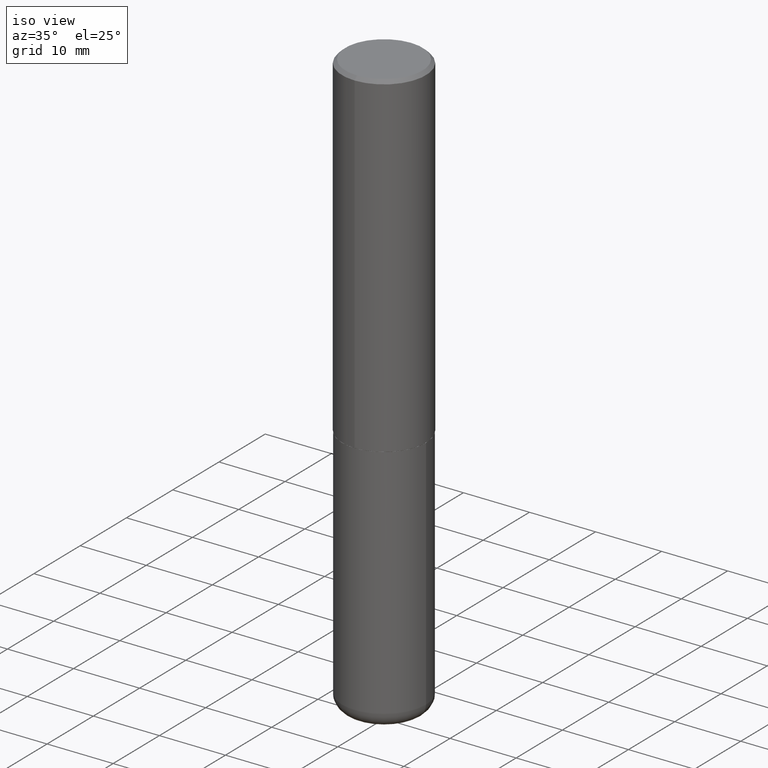
[diagram: clean part render]
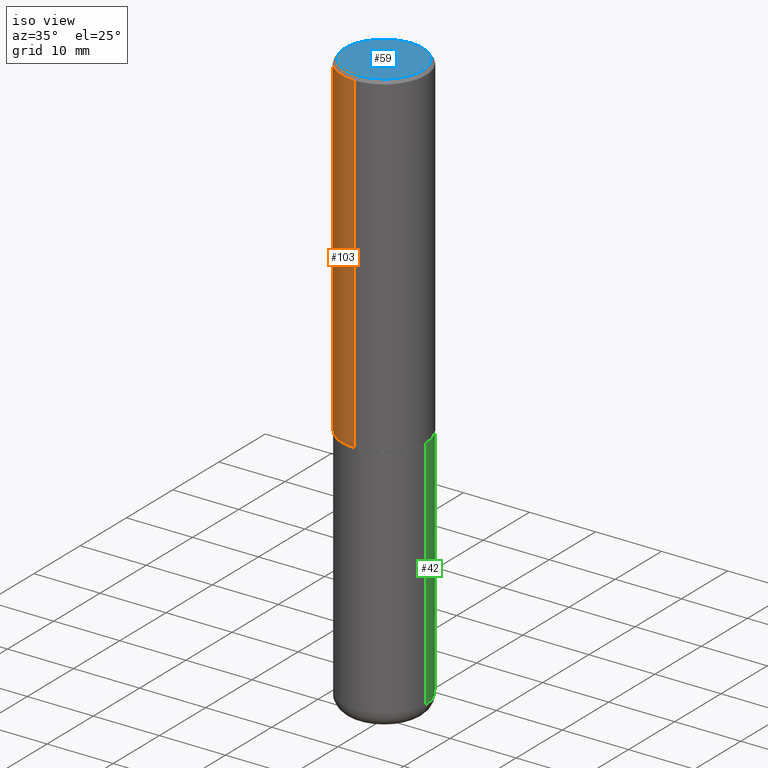
[diagram: same view with three faces highlighted in distinct colors, each labeled with its STEP entity id]
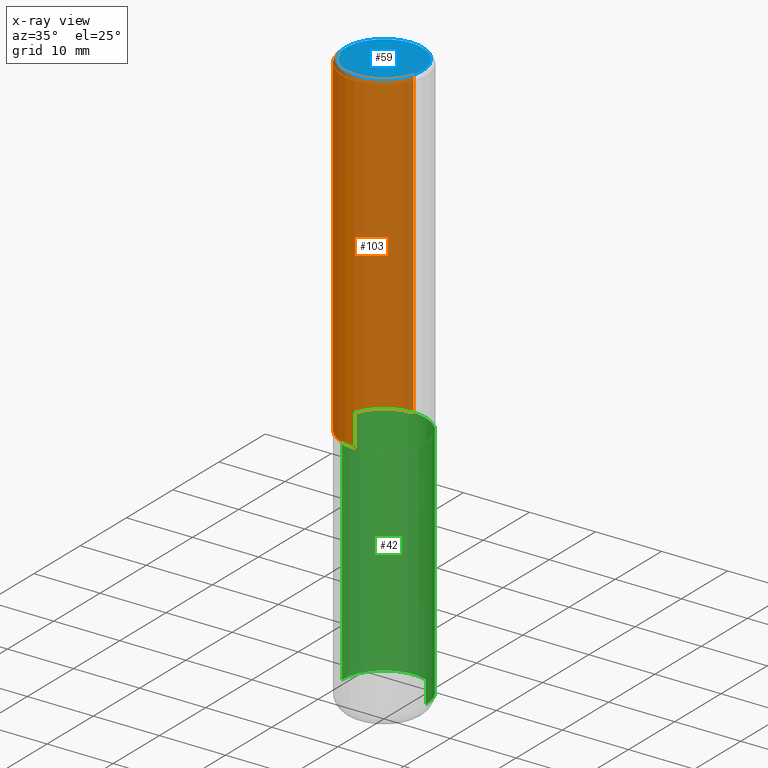
[diagram: x-ray of the same camera — body ghosted, the three highlighted faces saturated]
A machine part, iso view with three faces highlighted in distinct colors.
The next image is the same camera in x-ray (body ghosted, the three faces saturated) — at least one of them is partly hidden behind the body in this view.
Their STEP definitions:

[orange] entity #103 — the highlighted cylindrical surface (partial cylindrical patch) has radius 6.35 mm, axis along (-0, 0, 1).
#2 = VERTEX_POINT ( 'NONE', #410 ) ;
#6 = CARTESIAN_POINT ( 'NONE',  ( -1.715124499442882299E-15, -0.2500000000000000555, -0.01999999999999918510 ) ) ;
#7 = EDGE_CURVE ( 'NONE', #384, #346, #256, .T. ) ;
#19 = ORIENTED_EDGE ( 'NONE', *, *, #7, .T. ) ;
#54 = AXIS2_PLACEMENT_3D ( 'NONE', #101, #381, #198 ) ;
#75 = FACE_OUTER_BOUND ( 'NONE', #297, .T. ) ;
#83 = CARTESIAN_POINT ( 'NONE',  ( 0.000000000000000000, 0.000000000000000000, 0.000000000000000000 ) ) ;
#85 = DIRECTION ( 'NONE',  ( -2.445737183286911680E-29, 3.491097007558327602E-15, 1.000000000000000000 ) ) ;
#88 = DIRECTION ( 'NONE',  ( -6.982962677686266711E-15, -1.000000000000000000, 3.491097007558327996E-15 ) ) ;
#91 = VECTOR ( 'NONE', #218, 39.37007874015748143 ) ;
#96 = DIRECTION ( 'NONE',  ( -2.445737183286911680E-29, 3.491097007558327602E-15, 1.000000000000000000 ) ) ;
#101 = CARTESIAN_POINT ( 'NONE',  ( 4.889028629390535480E-29, -6.978702918109095527E-15, -1.998999999999999666 ) ) ;
#102 = VECTOR ( 'NONE', #96, 39.37007874015748143 ) ;
#103 = ADVANCED_FACE ( 'NONE', ( #75 ), #361, .T. ) ;
#104 = LINE ( 'NONE', #282, #91 ) ;
#168 = EDGE_CURVE ( 'NONE', #338, #2, #104, .T. ) ;
#179 = CARTESIAN_POINT ( 'NONE',  ( 1.776356839400276103E-15, 0.2499999999999933109, -1.999000000000000554 ) ) ;
#195 = CARTESIAN_POINT ( 'NONE',  ( -1.745740669421567467E-15, -0.2500000000000001110, 8.727742518895823935E-16 ) ) ;
#198 = DIRECTION ( 'NONE',  ( -6.982962677686265922E-15, -1.000000000000000000, 3.278217592397112312E-15 ) ) ;
#199 = CIRCLE ( 'NONE', #54, 0.2500000000000002776 ) ;
#218 = DIRECTION ( 'NONE',  ( -2.445737183286911680E-29, 3.491097007558327602E-15, 1.000000000000000000 ) ) ;
#222 = CARTESIAN_POINT ( 'NONE',  ( 4.891474366573836672E-31, -6.982194015116674235E-17, -0.02000000000000005593 ) ) ;
#224 = EDGE_CURVE ( 'NONE', #338, #384, #199, .T. ) ;
#238 = CARTESIAN_POINT ( 'NONE',  ( -1.745740669421519543E-15, -0.2500000000000072164, -1.998999999999998778 ) ) ;
#256 = LINE ( 'NONE', #195, #102 ) ;
#274 = EDGE_CURVE ( 'NONE', #2, #346, #407, .T. ) ;
#282 = CARTESIAN_POINT ( 'NONE',  ( 1.776356839400251254E-15, 0.2500000000000001110, -8.727742518895823935E-16 ) ) ;
#297 = EDGE_LOOP ( 'NONE', ( #343, #390, #19, #309 ) ) ;
#309 = ORIENTED_EDGE ( 'NONE', *, *, #274, .F. ) ;
#338 = VERTEX_POINT ( 'NONE', #179 ) ;
#343 = ORIENTED_EDGE ( 'NONE', *, *, #168, .F. ) ;
#345 = DIRECTION ( 'NONE',  ( -2.445737183286911680E-29, 3.491097007558327602E-15, 1.000000000000000000 ) ) ;
#346 = VERTEX_POINT ( 'NONE', #6 ) ;
#349 = DIRECTION ( 'NONE',  ( -6.982962677686265922E-15, -1.000000000000000000, 3.483106191921935554E-15 ) ) ;
#361 = CYLINDRICAL_SURFACE ( 'NONE', #380, 0.2500000000000001110 ) ;
#367 = AXIS2_PLACEMENT_3D ( 'NONE', #222, #345, #349 ) ;
#380 = AXIS2_PLACEMENT_3D ( 'NONE', #83, #85, #88 ) ;
#381 = DIRECTION ( 'NONE',  ( -2.445737183286911680E-29, 3.491097007558327602E-15, 1.000000000000000000 ) ) ;
#384 = VERTEX_POINT ( 'NONE', #238 ) ;
#390 = ORIENTED_EDGE ( 'NONE', *, *, #224, .T. ) ;
#407 = CIRCLE ( 'NONE', #367, 0.2500000000000000000 ) ;
#410 = CARTESIAN_POINT ( 'NONE',  ( 1.745740669421566875E-15, 0.2499999999999999167, -0.02000000000000092676 ) ) ;

[blue] entity #59 — the highlighted planar face has unit normal (0, -0, -1).
#9 = EDGE_LOOP ( 'NONE', ( #388, #263 ) ) ;
#23 = DIRECTION ( 'NONE',  ( -6.982962677686265922E-15, -1.000000000000000000, 3.491097007558327207E-15 ) ) ;
#33 = FACE_OUTER_BOUND ( 'NONE', #9, .T. ) ;
#38 = DIRECTION ( 'NONE',  ( 2.445737183286911400E-29, -3.491097007558327602E-15, -1.000000000000000000 ) ) ;
#39 = VERTEX_POINT ( 'NONE', #225 ) ;
#40 = CARTESIAN_POINT ( 'NONE',  ( 6.285415214839433991E-46, -8.971934677910720830E-32, -2.569947113611056727E-17 ) ) ;
#59 = ADVANCED_FACE ( 'NONE', ( #33 ), #321, .F. ) ;
#155 = CIRCLE ( 'NONE', #319, 0.2299999999999999822 ) ;
#164 = CIRCLE ( 'NONE', #189, 0.2299999999999999822 ) ;
#189 = AXIS2_PLACEMENT_3D ( 'NONE', #190, #283, #23 ) ;
#190 = CARTESIAN_POINT ( 'NONE',  ( 6.285415214839433991E-46, -8.971934677910720830E-32, -2.569947113611056727E-17 ) ) ;
#225 = CARTESIAN_POINT ( 'NONE',  ( 1.675911042644703774E-15, 0.2299999999999999822, -8.286517828745257562E-16 ) ) ;
#253 = CARTESIAN_POINT ( 'NONE',  ( -1.646519519465166968E-15, -0.2299999999999999822, 7.772528406023046093E-16 ) ) ;
#257 = EDGE_CURVE ( 'NONE', #39, #266, #164, .T. ) ;
#263 = ORIENTED_EDGE ( 'NONE', *, *, #331, .T. ) ;
#264 = DIRECTION ( 'NONE',  ( -2.445737183286911680E-29, 3.491097007558327602E-15, 1.000000000000000000 ) ) ;
#266 = VERTEX_POINT ( 'NONE', #253 ) ;
#283 = DIRECTION ( 'NONE',  ( -2.445737183286911680E-29, 3.491097007558327602E-15, 1.000000000000000000 ) ) ;
#284 = CARTESIAN_POINT ( 'NONE',  ( 1.606081415867841067E-15, 0.2299999999999999822, -8.158020473064706174E-16 ) ) ;
#319 = AXIS2_PLACEMENT_3D ( 'NONE', #40, #264, #344 ) ;
#321 = PLANE ( 'NONE',  #405 ) ;
#331 = EDGE_CURVE ( 'NONE', #266, #39, #155, .T. ) ;
#344 = DIRECTION ( 'NONE',  ( -6.982962677686265922E-15, -1.000000000000000000, 3.491097007558327207E-15 ) ) ;
#350 = DIRECTION ( 'NONE',  ( 6.982962677686265922E-15, 1.000000000000000000, -3.491097007558327602E-15 ) ) ;
#388 = ORIENTED_EDGE ( 'NONE', *, *, #257, .T. ) ;
#405 = AXIS2_PLACEMENT_3D ( 'NONE', #284, #38, #350 ) ;

[green] entity #42 — the highlighted cylindrical surface (partial cylindrical patch) has radius 6.35 mm, axis along (-0, 0, 1).
#13 = VECTOR ( 'NONE', #157, 39.37007874015748143 ) ;
#15 = EDGE_CURVE ( 'NONE', #105, #27, #36, .T. ) ;
#25 = CARTESIAN_POINT ( 'NONE',  ( 0.2500000000000000000, -8.728703347107857054E-15, -1.999999999999999778 ) ) ;
#27 = VERTEX_POINT ( 'NONE', #162 ) ;
#31 = CIRCLE ( 'NONE', #140, 0.2500000000000000000 ) ;
#35 = DIRECTION ( 'NONE',  ( -2.445468806185136597E-29, 3.491481338843145583E-15, 1.000000000000000000 ) ) ;
#36 = LINE ( 'NONE', #185, #13 ) ;
#41 = DIRECTION ( 'NONE',  ( -2.445468806185136597E-29, 3.491481338843145583E-15, 1.000000000000000000 ) ) ;
#42 = ADVANCED_FACE ( 'NONE', ( #191 ), #223, .T. ) ;
#57 = EDGE_LOOP ( 'NONE', ( #236, #395, #398, #377 ) ) ;
#66 = DIRECTION ( 'NONE',  ( -2.445468806185136597E-29, 3.491481338843145583E-15, 1.000000000000000000 ) ) ;
#69 = EDGE_CURVE ( 'NONE', #277, #27, #31, .T. ) ;
#79 = LINE ( 'NONE', #146, #108 ) ;
#105 = VERTEX_POINT ( 'NONE', #176 ) ;
#108 = VECTOR ( 'NONE', #273, 39.37007874015748143 ) ;
#118 = CIRCLE ( 'NONE', #130, 0.2500000000000000555 ) ;
#120 = CARTESIAN_POINT ( 'NONE',  ( 0.000000000000000000, 0.000000000000000000, 0.000000000000000000 ) ) ;
#124 = DIRECTION ( 'NONE',  ( 1.000000000000000000, -6.982962677686266711E-15, 4.876176775795935793E-29 ) ) ;
#130 = AXIS2_PLACEMENT_3D ( 'NONE', #219, #41, #310 ) ;
#140 = AXIS2_PLACEMENT_3D ( 'NONE', #415, #66, #194 ) ;
#146 = CARTESIAN_POINT ( 'NONE',  ( 0.2500000000000000000, -1.745740669421566678E-15, 1.219044193948983948E-29 ) ) ;
#148 = CARTESIAN_POINT ( 'NONE',  ( 0.2499999999999998612, -1.365169203487669276E-14, -3.410000000000000142 ) ) ;
#157 = DIRECTION ( 'NONE',  ( -2.445468806185136877E-29, 3.491481338843145188E-15, 1.000000000000000000 ) ) ;
#162 = CARTESIAN_POINT ( 'NONE',  ( -0.2500000000000000000, -7.668100182170457762E-15, -1.999999999999999778 ) ) ;
#176 = CARTESIAN_POINT ( 'NONE',  ( -0.2499999999999998612, -1.012959452605487719E-14, -3.410000000000000142 ) ) ;
#181 = EDGE_CURVE ( 'NONE', #369, #105, #118, .T. ) ;
#185 = CARTESIAN_POINT ( 'NONE',  ( -0.2500000000000000000, 1.776356839400250465E-15, -1.229733772563726445E-29 ) ) ;
#191 = FACE_OUTER_BOUND ( 'NONE', #57, .T. ) ;
#194 = DIRECTION ( 'NONE',  ( 1.000000000000000000, -6.982962677686266711E-15, 0.000000000000000000 ) ) ;
#219 = CARTESIAN_POINT ( 'NONE',  ( 8.339048629091315302E-29, -1.190595136545512608E-14, -3.410000000000000142 ) ) ;
#223 = CYLINDRICAL_SURFACE ( 'NONE', #356, 0.2500000000000000000 ) ;
#236 = ORIENTED_EDGE ( 'NONE', *, *, #181, .T. ) ;
#273 = DIRECTION ( 'NONE',  ( -2.445468806185136877E-29, 3.491481338843145188E-15, 1.000000000000000000 ) ) ;
#277 = VERTEX_POINT ( 'NONE', #25 ) ;
#310 = DIRECTION ( 'NONE',  ( 1.000000000000000000, -6.982962677686269077E-15, 0.000000000000000000 ) ) ;
#356 = AXIS2_PLACEMENT_3D ( 'NONE', #120, #35, #124 ) ;
#369 = VERTEX_POINT ( 'NONE', #148 ) ;
#377 = ORIENTED_EDGE ( 'NONE', *, *, #412, .F. ) ;
#395 = ORIENTED_EDGE ( 'NONE', *, *, #15, .T. ) ;
#398 = ORIENTED_EDGE ( 'NONE', *, *, #69, .F. ) ;
#412 = EDGE_CURVE ( 'NONE', #369, #277, #79, .T. ) ;
#415 = CARTESIAN_POINT ( 'NONE',  ( 4.890937612370272633E-29, -6.982962677686290376E-15, -1.999999999999999778 ) ) ;